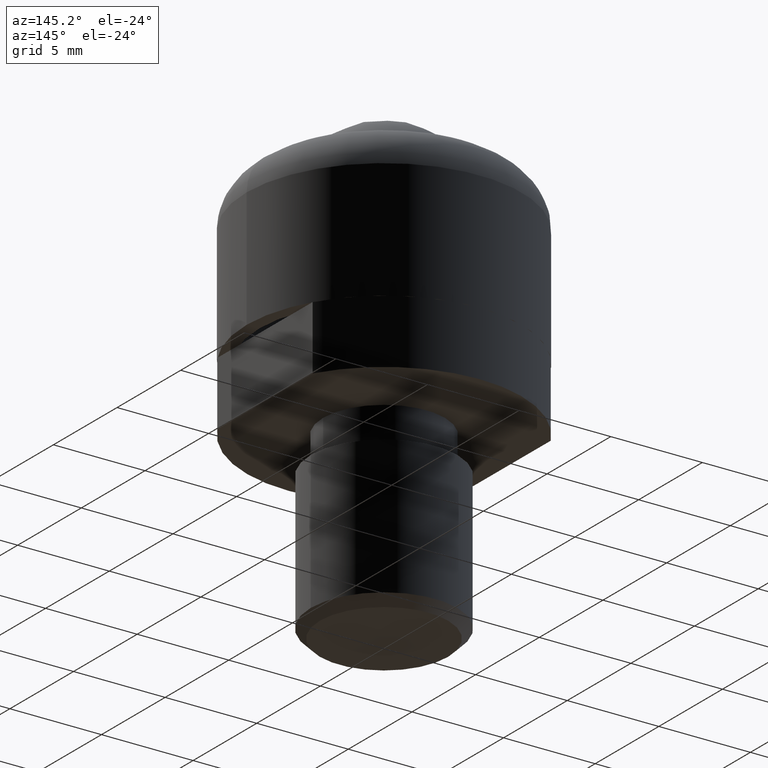
[diagram: clean part render]
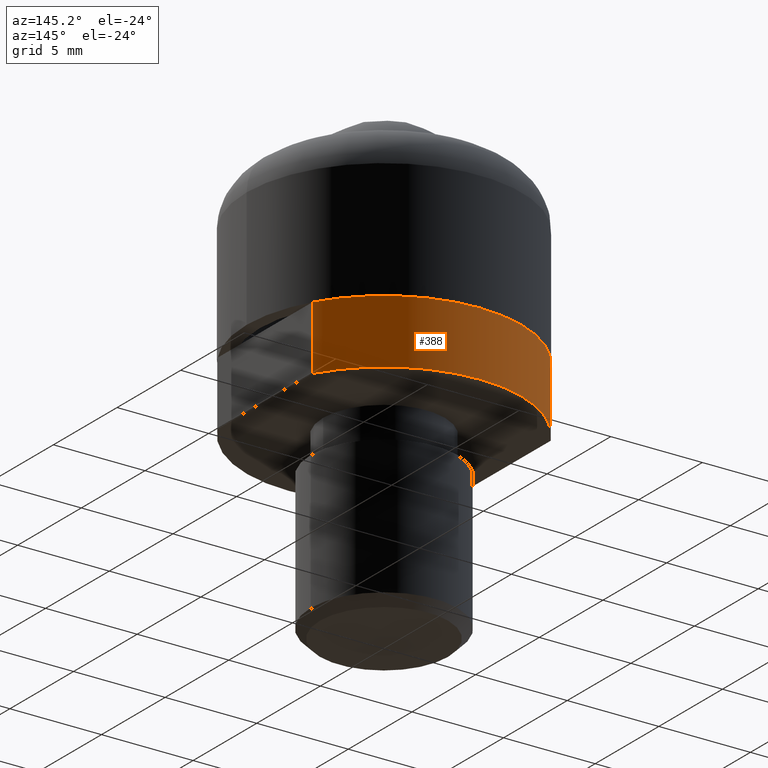
[diagram: same view with one face highlighted and labeled with its STEP entity id]
A machine part, auxiliary view. The second image highlights one B-rep face of the part: STEP entity #388.
In plain terms, the highlighted cylindrical surface (partial cylindrical patch) has radius 7.5 mm, axis along (0, 0, 1).
Its self-contained STEP definition (entity closure, byte-faithful):
#1 = CARTESIAN_POINT ( 'NONE',  ( 6.500000000000000000, 3.741657386773960000, -1000.000000000000000 ) ) ;
#2 = AXIS2_PLACEMENT_3D ( 'NONE', #451, #479, #524 ) ;
#11 = ORIENTED_EDGE ( 'NONE', *, *, #421, .T. ) ;
#30 = DIRECTION ( 'NONE',  ( 0.0000000000000000000, 0.0000000000000000000, 1.000000000000000000 ) ) ;
#65 = EDGE_CURVE ( 'NONE', #774, #435, #770, .T. ) ;
#73 = CARTESIAN_POINT ( 'NONE',  ( -6.500000000000000000, 3.741657386773945300, -1000.000000000000000 ) ) ;
#74 = DIRECTION ( 'NONE',  ( 0.0000000000000000000, 0.0000000000000000000, 1.000000000000000000 ) ) ;
#219 = ORIENTED_EDGE ( 'NONE', *, *, #881, .F. ) ;
#267 = EDGE_CURVE ( 'NONE', #360, #291, #827, .T. ) ;
#269 = CARTESIAN_POINT ( 'NONE',  ( 6.500000000000000000, 3.741657386773960000, 0.0000000000000000000 ) ) ;
#272 = DIRECTION ( 'NONE',  ( 1.000000000000000000, -8.881784197001252300E-016, 0.0000000000000000000 ) ) ;
#285 = VECTOR ( 'NONE', #30, 1000.000000000000000 ) ;
#291 = VERTEX_POINT ( 'NONE', #482 ) ;
#322 = AXIS2_PLACEMENT_3D ( 'NONE', #760, #642, #929 ) ;
#330 = ORIENTED_EDGE ( 'NONE', *, *, #267, .F. ) ;
#331 = CYLINDRICAL_SURFACE ( 'NONE', #2, 7.500000000000000000 ) ;
#345 = DIRECTION ( 'NONE',  ( -0.0000000000000000000, -0.0000000000000000000, -1.000000000000000000 ) ) ;
#360 = VERTEX_POINT ( 'NONE', #366 ) ;
#366 = CARTESIAN_POINT ( 'NONE',  ( -6.500000000000000000, 3.741657386773945300, -3.499999999999950300 ) ) ;
#388 = ADVANCED_FACE ( 'NONE', ( #943 ), #331, .T. ) ;
#399 = EDGE_LOOP ( 'NONE', ( #469, #219, #330, #11 ) ) ;
#421 = EDGE_CURVE ( 'NONE', #360, #774, #878, .T. ) ;
#435 = VERTEX_POINT ( 'NONE', #269 ) ;
#451 = CARTESIAN_POINT ( 'NONE',  ( 0.0000000000000000000, 0.0000000000000000000, -1000.000000000000000 ) ) ;
#469 = ORIENTED_EDGE ( 'NONE', *, *, #65, .T. ) ;
#479 = DIRECTION ( 'NONE',  ( 0.0000000000000000000, 0.0000000000000000000, 1.000000000000000000 ) ) ;
#482 = CARTESIAN_POINT ( 'NONE',  ( 6.500000000000000000, 3.741657386773960000, -3.499999999999950300 ) ) ;
#524 = DIRECTION ( 'NONE',  ( 1.000000000000000000, 0.0000000000000000000, 0.0000000000000000000 ) ) ;
#542 = VECTOR ( 'NONE', #74, 1000.000000000000000 ) ;
#593 = LINE ( 'NONE', #1, #542 ) ;
#642 = DIRECTION ( 'NONE',  ( -0.0000000000000000000, -0.0000000000000000000, -1.000000000000000000 ) ) ;
#643 = AXIS2_PLACEMENT_3D ( 'NONE', #866, #345, #272 ) ;
#726 = CARTESIAN_POINT ( 'NONE',  ( -6.500000000000000000, 3.741657386773945300, 0.0000000000000000000 ) ) ;
#760 = CARTESIAN_POINT ( 'NONE',  ( 0.0000000000000000000, 0.0000000000000000000, -3.499999999999950300 ) ) ;
#770 = CIRCLE ( 'NONE', #643, 7.500000000000000000 ) ;
#774 = VERTEX_POINT ( 'NONE', #726 ) ;
#827 = CIRCLE ( 'NONE', #322, 7.500000000000000000 ) ;
#866 = CARTESIAN_POINT ( 'NONE',  ( 0.0000000000000000000, 0.0000000000000000000, 0.0000000000000000000 ) ) ;
#878 = LINE ( 'NONE', #73, #285 ) ;
#881 = EDGE_CURVE ( 'NONE', #291, #435, #593, .T. ) ;
#929 = DIRECTION ( 'NONE',  ( 1.000000000000000000, -8.881784197001252300E-016, 0.0000000000000000000 ) ) ;
#943 = FACE_OUTER_BOUND ( 'NONE', #399, .T. ) ;